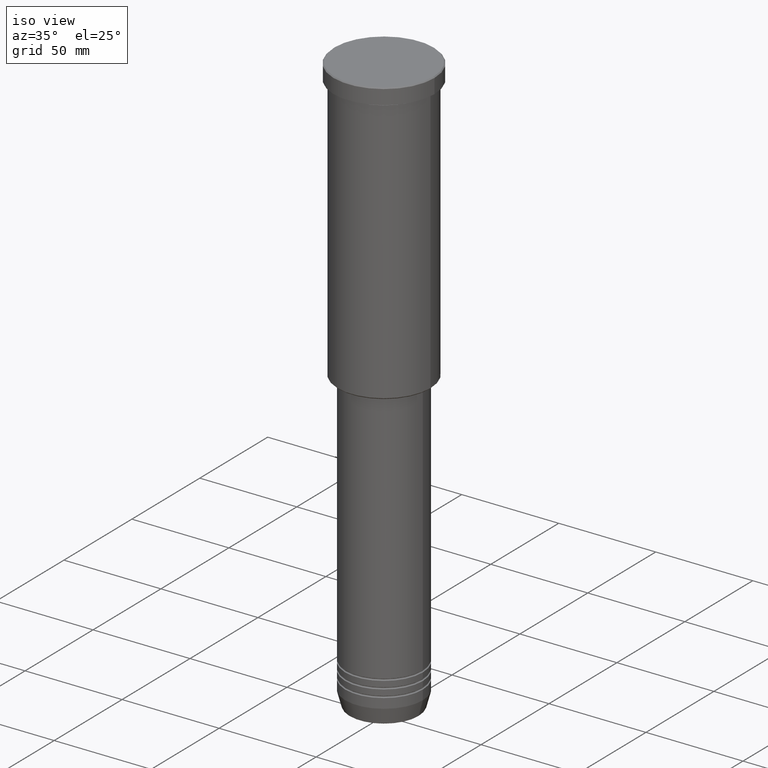
[diagram: clean part render]
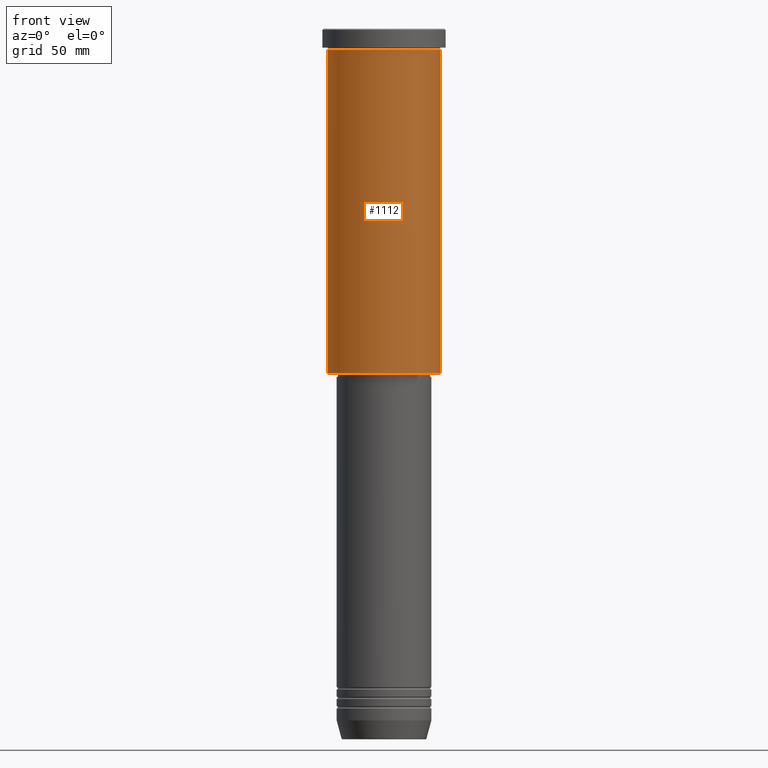
[diagram: tour spotlight — one face highlighted and labeled with its STEP entity id]
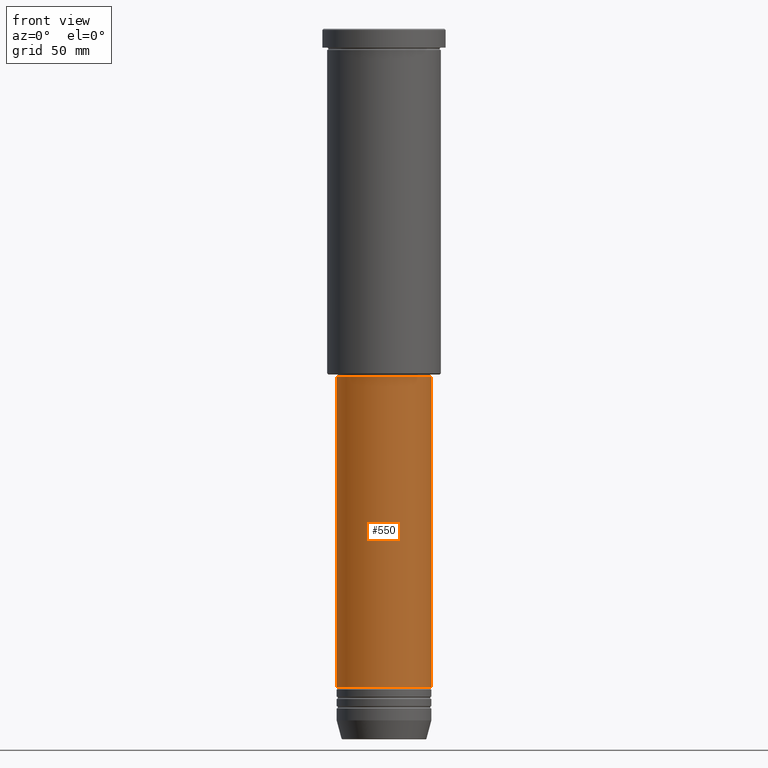
[diagram: tour spotlight — one face highlighted and labeled with its STEP entity id]
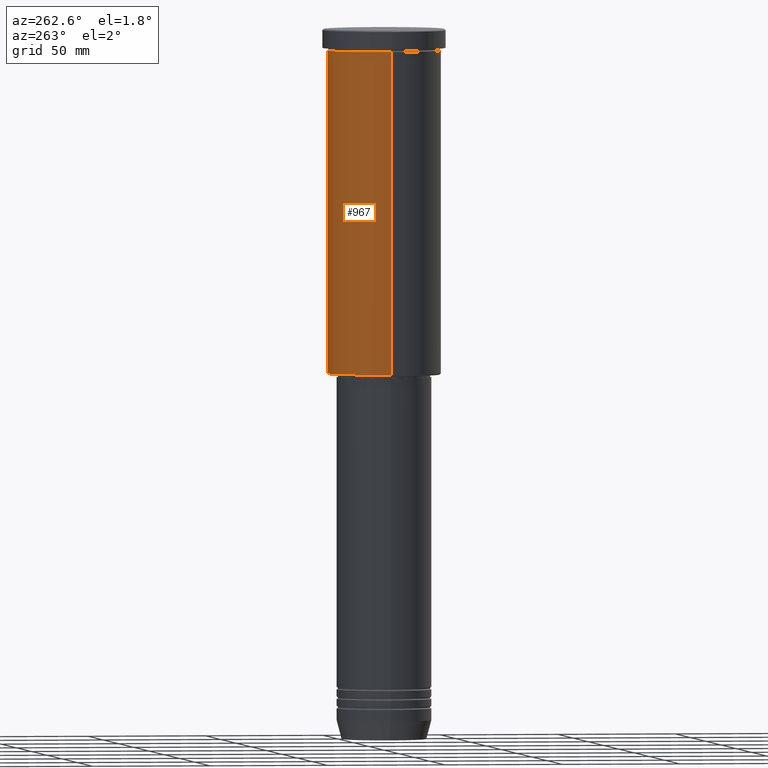
[diagram: tour spotlight — one face highlighted and labeled with its STEP entity id]
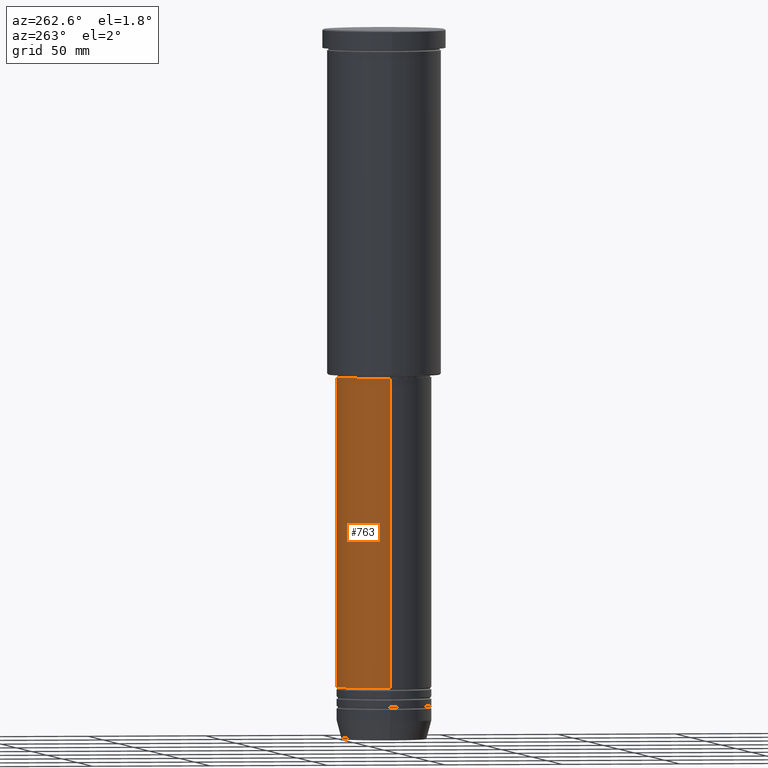
[diagram: tour spotlight — one face highlighted and labeled with its STEP entity id]
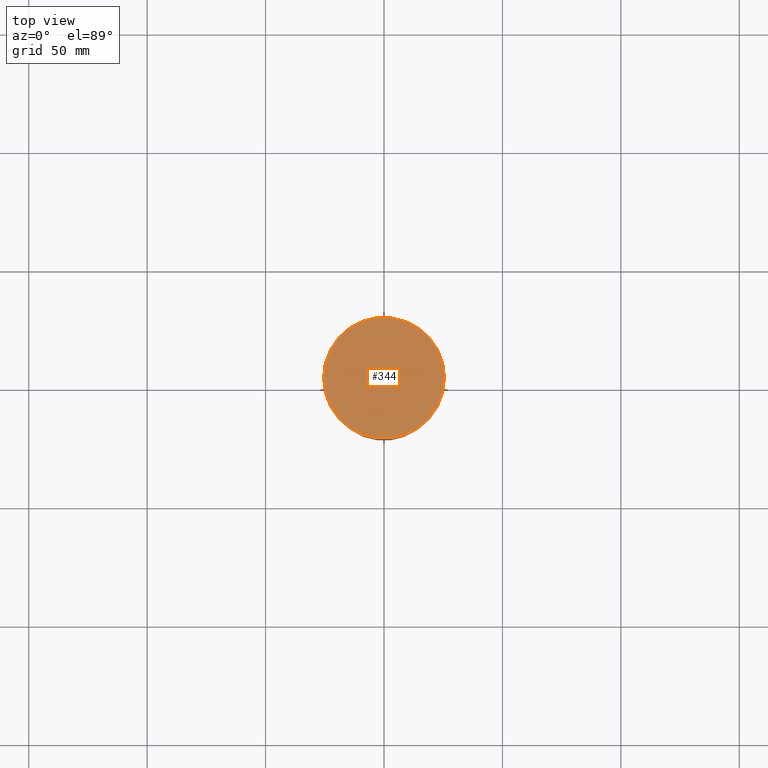
[diagram: tour spotlight — one face highlighted and labeled with its STEP entity id]
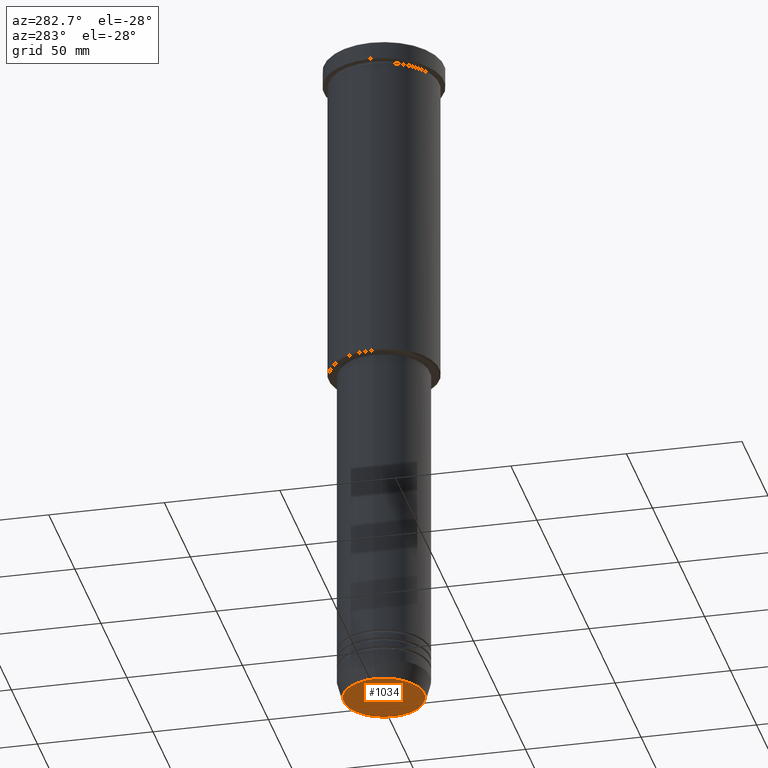
[diagram: tour spotlight — one face highlighted and labeled with its STEP entity id]
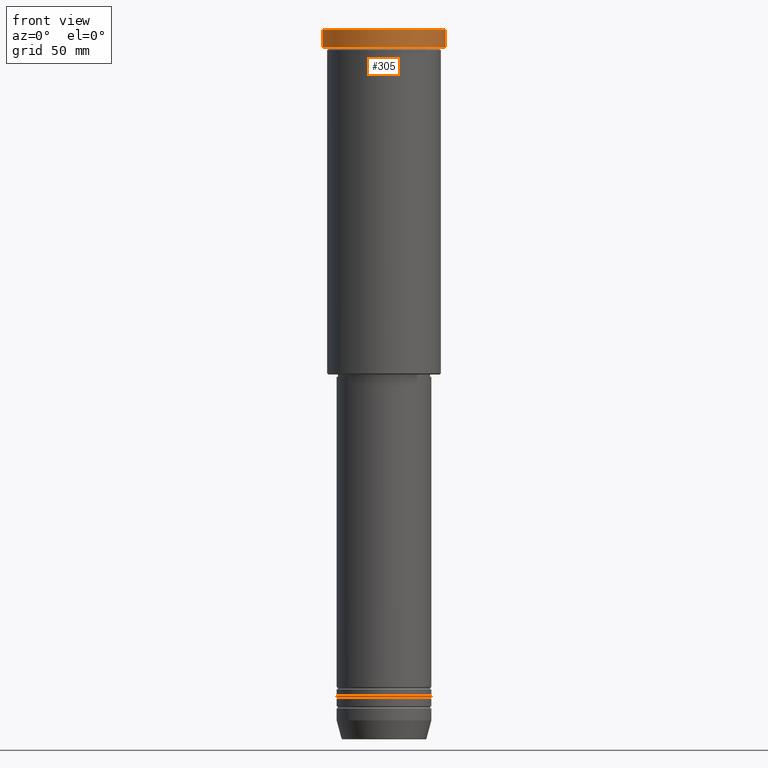
[diagram: tour spotlight — one face highlighted and labeled with its STEP entity id]
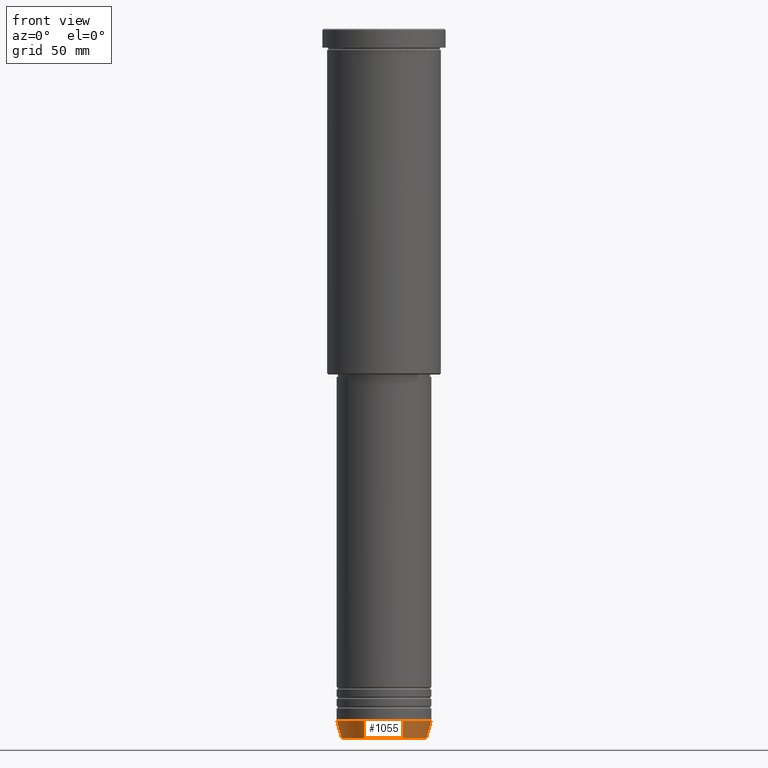
[diagram: tour spotlight — one face highlighted and labeled with its STEP entity id]
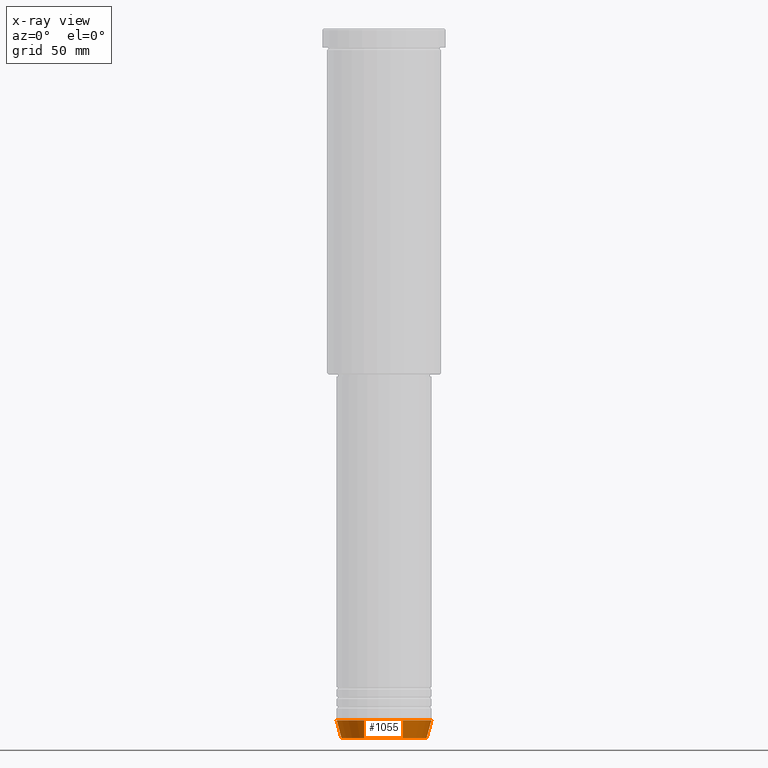
[diagram: x-ray of the same camera — body ghosted, this tour face saturated]
A machine part: a face-by-face anatomy tour. The part has 43 B-rep faces; the first image is the clean iso view, then the 8 largest visible faces are spotlighted one at a time (largest first), each with its STEP entity span.

Face 1 — front view, entity #1112. In plain terms, the highlighted cylindrical surface (partial cylindrical patch) has radius 24 mm, axis along (-0, -0, 1).
Definition (entity closure, byte-faithful):
#22 = EDGE_CURVE ( 'NONE', #1080, #438, #791, .T. ) ;
#26 = VERTEX_POINT ( 'NONE', #882 ) ;
#95 = DIRECTION ( 'NONE',  ( -0.000000000000000000, -0.000000000000000000, 1.000000000000000000 ) ) ;
#126 = CARTESIAN_POINT ( 'NONE',  ( -24.00000000000000000, 2.939152317953647894E-15, -8.999999999999994671 ) ) ;
#142 = VECTOR ( 'NONE', #398, 1000.000000000000000 ) ;
#159 = CIRCLE ( 'NONE', #329, 24.00000000000000000 ) ;
#207 = FACE_OUTER_BOUND ( 'NONE', #375, .T. ) ;
#217 = EDGE_CURVE ( 'NONE', #1080, #26, #392, .T. ) ;
#225 = VERTEX_POINT ( 'NONE', #369 ) ;
#295 = VECTOR ( 'NONE', #1142, 1000.000000000000000 ) ;
#311 = ORIENTED_EDGE ( 'NONE', *, *, #217, .T. ) ;
#329 = AXIS2_PLACEMENT_3D ( 'NONE', #1056, #1126, #408 ) ;
#369 = CARTESIAN_POINT ( 'NONE',  ( 24.00000000000000000, 0.000000000000000000, -8.999999999999994671 ) ) ;
#375 = EDGE_LOOP ( 'NONE', ( #1072, #311, #508, #401 ) ) ;
#392 = CIRCLE ( 'NONE', #784, 24.00000000000000000 ) ;
#397 = EDGE_CURVE ( 'NONE', #438, #225, #159, .T. ) ;
#398 = DIRECTION ( 'NONE',  ( -0.000000000000000000, -0.000000000000000000, 1.000000000000000000 ) ) ;
#401 = ORIENTED_EDGE ( 'NONE', *, *, #397, .F. ) ;
#408 = DIRECTION ( 'NONE',  ( 1.000000000000000000, 0.000000000000000000, 0.000000000000000000 ) ) ;
#438 = VERTEX_POINT ( 'NONE', #126 ) ;
#449 = EDGE_CURVE ( 'NONE', #26, #225, #491, .T. ) ;
#479 = AXIS2_PLACEMENT_3D ( 'NONE', #751, #926, #590 ) ;
#487 = CARTESIAN_POINT ( 'NONE',  ( -24.00000000000000000, 2.939152317953647894E-15, -145.4999999999998863 ) ) ;
#491 = LINE ( 'NONE', #593, #142 ) ;
#508 = ORIENTED_EDGE ( 'NONE', *, *, #449, .T. ) ;
#573 = CYLINDRICAL_SURFACE ( 'NONE', #479, 24.00000000000000000 ) ;
#590 = DIRECTION ( 'NONE',  ( 1.000000000000000000, 0.000000000000000000, 0.000000000000000000 ) ) ;
#593 = CARTESIAN_POINT ( 'NONE',  ( 24.00000000000000000, 0.000000000000000000, 0.000000000000000000 ) ) ;
#719 = CARTESIAN_POINT ( 'NONE',  ( -24.00000000000000000, 2.939152317953647894E-15, 0.000000000000000000 ) ) ;
#739 = DIRECTION ( 'NONE',  ( -1.000000000000000000, 0.000000000000000000, 0.000000000000000000 ) ) ;
#751 = CARTESIAN_POINT ( 'NONE',  ( 0.000000000000000000, 0.000000000000000000, 0.000000000000000000 ) ) ;
#784 = AXIS2_PLACEMENT_3D ( 'NONE', #1006, #95, #739 ) ;
#791 = LINE ( 'NONE', #719, #295 ) ;
#882 = CARTESIAN_POINT ( 'NONE',  ( 24.00000000000000000, 0.000000000000000000, -145.4999999999998863 ) ) ;
#926 = DIRECTION ( 'NONE',  ( -0.000000000000000000, -0.000000000000000000, 1.000000000000000000 ) ) ;
#1006 = CARTESIAN_POINT ( 'NONE',  ( 0.000000000000000000, 0.000000000000000000, -145.4999999999998863 ) ) ;
#1056 = CARTESIAN_POINT ( 'NONE',  ( 0.000000000000000000, 0.000000000000000000, -8.999999999999994671 ) ) ;
#1072 = ORIENTED_EDGE ( 'NONE', *, *, #22, .F. ) ;
#1080 = VERTEX_POINT ( 'NONE', #487 ) ;
#1112 = ADVANCED_FACE ( 'NONE', ( #207 ), #573, .T. ) ;
#1126 = DIRECTION ( 'NONE',  ( -0.000000000000000000, -0.000000000000000000, 1.000000000000000000 ) ) ;
#1142 = DIRECTION ( 'NONE',  ( -0.000000000000000000, -0.000000000000000000, 1.000000000000000000 ) ) ;

Face 2 — front view, entity #550. In plain terms, the highlighted cylindrical surface (partial cylindrical patch) has radius 20 mm, axis along (-0, -0, 1).
Definition (entity closure, byte-faithful):
#9 = CARTESIAN_POINT ( 'NONE',  ( 20.00000000000000355, 0.000000000000000000, -277.9999999999999432 ) ) ;
#53 = CARTESIAN_POINT ( 'NONE',  ( -20.00000000000000355, 2.449293598294706907E-15, -277.9999999999999432 ) ) ;
#65 = VECTOR ( 'NONE', #1094, 1000.000000000000000 ) ;
#72 = CARTESIAN_POINT ( 'NONE',  ( -20.00000000000000355, 2.449293598294706907E-15, -147.0000000000000000 ) ) ;
#78 = VERTEX_POINT ( 'NONE', #53 ) ;
#81 = DIRECTION ( 'NONE',  ( 1.000000000000000000, 0.000000000000000000, 0.000000000000000000 ) ) ;
#103 = EDGE_CURVE ( 'NONE', #78, #114, #981, .T. ) ;
#105 = CIRCLE ( 'NONE', #454, 20.00000000000000355 ) ;
#111 = EDGE_CURVE ( 'NONE', #114, #1068, #105, .T. ) ;
#114 = VERTEX_POINT ( 'NONE', #72 ) ;
#119 = EDGE_LOOP ( 'NONE', ( #455, #779, #630, #770 ) ) ;
#140 = DIRECTION ( 'NONE',  ( -0.000000000000000000, -0.000000000000000000, 1.000000000000000000 ) ) ;
#333 = VERTEX_POINT ( 'NONE', #9 ) ;
#337 = LINE ( 'NONE', #716, #65 ) ;
#350 = CYLINDRICAL_SURFACE ( 'NONE', #637, 20.00000000000000355 ) ;
#423 = DIRECTION ( 'NONE',  ( 1.000000000000000000, 0.000000000000000000, 0.000000000000000000 ) ) ;
#454 = AXIS2_PLACEMENT_3D ( 'NONE', #531, #1160, #423 ) ;
#455 = ORIENTED_EDGE ( 'NONE', *, *, #103, .F. ) ;
#531 = CARTESIAN_POINT ( 'NONE',  ( 0.000000000000000000, 0.000000000000000000, -147.0000000000000000 ) ) ;
#535 = DIRECTION ( 'NONE',  ( 1.000000000000000000, 0.000000000000000000, 0.000000000000000000 ) ) ;
#542 = DIRECTION ( 'NONE',  ( -0.000000000000000000, -0.000000000000000000, 1.000000000000000000 ) ) ;
#543 = EDGE_CURVE ( 'NONE', #78, #333, #690, .T. ) ;
#550 = ADVANCED_FACE ( 'NONE', ( #1146 ), #350, .T. ) ;
#630 = ORIENTED_EDGE ( 'NONE', *, *, #999, .T. ) ;
#637 = AXIS2_PLACEMENT_3D ( 'NONE', #1065, #542, #81 ) ;
#690 = CIRCLE ( 'NONE', #934, 20.00000000000000355 ) ;
#716 = CARTESIAN_POINT ( 'NONE',  ( 20.00000000000000355, 0.000000000000000000, 0.000000000000000000 ) ) ;
#770 = ORIENTED_EDGE ( 'NONE', *, *, #111, .F. ) ;
#779 = ORIENTED_EDGE ( 'NONE', *, *, #543, .T. ) ;
#877 = CARTESIAN_POINT ( 'NONE',  ( -20.00000000000000355, 2.449293598294706907E-15, 0.000000000000000000 ) ) ;
#910 = DIRECTION ( 'NONE',  ( -0.000000000000000000, -0.000000000000000000, 1.000000000000000000 ) ) ;
#934 = AXIS2_PLACEMENT_3D ( 'NONE', #977, #910, #535 ) ;
#977 = CARTESIAN_POINT ( 'NONE',  ( 0.000000000000000000, 0.000000000000000000, -277.9999999999999432 ) ) ;
#981 = LINE ( 'NONE', #877, #1168 ) ;
#999 = EDGE_CURVE ( 'NONE', #333, #1068, #337, .T. ) ;
#1035 = CARTESIAN_POINT ( 'NONE',  ( 20.00000000000000355, 0.000000000000000000, -147.0000000000000000 ) ) ;
#1065 = CARTESIAN_POINT ( 'NONE',  ( 0.000000000000000000, 0.000000000000000000, 0.000000000000000000 ) ) ;
#1068 = VERTEX_POINT ( 'NONE', #1035 ) ;
#1094 = DIRECTION ( 'NONE',  ( -0.000000000000000000, -0.000000000000000000, 1.000000000000000000 ) ) ;
#1146 = FACE_OUTER_BOUND ( 'NONE', #119, .T. ) ;
#1160 = DIRECTION ( 'NONE',  ( -0.000000000000000000, -0.000000000000000000, 1.000000000000000000 ) ) ;
#1168 = VECTOR ( 'NONE', #140, 1000.000000000000000 ) ;

Face 3 — auxiliary view, entity #967. In plain terms, the highlighted cylindrical surface (partial cylindrical patch) has radius 24 mm, axis along (-0, -0, 1).
Definition (entity closure, byte-faithful):
#22 = EDGE_CURVE ( 'NONE', #1080, #438, #791, .T. ) ;
#26 = VERTEX_POINT ( 'NONE', #882 ) ;
#70 = DIRECTION ( 'NONE',  ( -0.000000000000000000, -0.000000000000000000, 1.000000000000000000 ) ) ;
#126 = CARTESIAN_POINT ( 'NONE',  ( -24.00000000000000000, 2.939152317953647894E-15, -8.999999999999994671 ) ) ;
#131 = ORIENTED_EDGE ( 'NONE', *, *, #449, .F. ) ;
#142 = VECTOR ( 'NONE', #398, 1000.000000000000000 ) ;
#166 = AXIS2_PLACEMENT_3D ( 'NONE', #1019, #285, #193 ) ;
#168 = CYLINDRICAL_SURFACE ( 'NONE', #618, 24.00000000000000000 ) ;
#172 = FACE_OUTER_BOUND ( 'NONE', #530, .T. ) ;
#193 = DIRECTION ( 'NONE',  ( -1.000000000000000000, 0.000000000000000000, 0.000000000000000000 ) ) ;
#225 = VERTEX_POINT ( 'NONE', #369 ) ;
#285 = DIRECTION ( 'NONE',  ( -0.000000000000000000, -0.000000000000000000, 1.000000000000000000 ) ) ;
#289 = CARTESIAN_POINT ( 'NONE',  ( 0.000000000000000000, 0.000000000000000000, -8.999999999999994671 ) ) ;
#295 = VECTOR ( 'NONE', #1142, 1000.000000000000000 ) ;
#369 = CARTESIAN_POINT ( 'NONE',  ( 24.00000000000000000, 0.000000000000000000, -8.999999999999994671 ) ) ;
#398 = DIRECTION ( 'NONE',  ( -0.000000000000000000, -0.000000000000000000, 1.000000000000000000 ) ) ;
#438 = VERTEX_POINT ( 'NONE', #126 ) ;
#449 = EDGE_CURVE ( 'NONE', #26, #225, #491, .T. ) ;
#464 = DIRECTION ( 'NONE',  ( -0.000000000000000000, -0.000000000000000000, 1.000000000000000000 ) ) ;
#470 = ORIENTED_EDGE ( 'NONE', *, *, #22, .T. ) ;
#476 = AXIS2_PLACEMENT_3D ( 'NONE', #289, #464, #1091 ) ;
#487 = CARTESIAN_POINT ( 'NONE',  ( -24.00000000000000000, 2.939152317953647894E-15, -145.4999999999998863 ) ) ;
#491 = LINE ( 'NONE', #593, #142 ) ;
#530 = EDGE_LOOP ( 'NONE', ( #1000, #470, #732, #131 ) ) ;
#593 = CARTESIAN_POINT ( 'NONE',  ( 24.00000000000000000, 0.000000000000000000, 0.000000000000000000 ) ) ;
#618 = AXIS2_PLACEMENT_3D ( 'NONE', #1178, #70, #809 ) ;
#719 = CARTESIAN_POINT ( 'NONE',  ( -24.00000000000000000, 2.939152317953647894E-15, 0.000000000000000000 ) ) ;
#725 = EDGE_CURVE ( 'NONE', #225, #438, #990, .T. ) ;
#732 = ORIENTED_EDGE ( 'NONE', *, *, #725, .F. ) ;
#791 = LINE ( 'NONE', #719, #295 ) ;
#809 = DIRECTION ( 'NONE',  ( 1.000000000000000000, 0.000000000000000000, 0.000000000000000000 ) ) ;
#814 = EDGE_CURVE ( 'NONE', #26, #1080, #972, .T. ) ;
#882 = CARTESIAN_POINT ( 'NONE',  ( 24.00000000000000000, 0.000000000000000000, -145.4999999999998863 ) ) ;
#967 = ADVANCED_FACE ( 'NONE', ( #172 ), #168, .T. ) ;
#972 = CIRCLE ( 'NONE', #166, 24.00000000000000000 ) ;
#990 = CIRCLE ( 'NONE', #476, 24.00000000000000000 ) ;
#1000 = ORIENTED_EDGE ( 'NONE', *, *, #814, .T. ) ;
#1019 = CARTESIAN_POINT ( 'NONE',  ( 0.000000000000000000, 0.000000000000000000, -145.4999999999998863 ) ) ;
#1080 = VERTEX_POINT ( 'NONE', #487 ) ;
#1091 = DIRECTION ( 'NONE',  ( 1.000000000000000000, 0.000000000000000000, 0.000000000000000000 ) ) ;
#1142 = DIRECTION ( 'NONE',  ( -0.000000000000000000, -0.000000000000000000, 1.000000000000000000 ) ) ;
#1178 = CARTESIAN_POINT ( 'NONE',  ( 0.000000000000000000, 0.000000000000000000, 0.000000000000000000 ) ) ;

Face 4 — auxiliary view, entity #763. In plain terms, the highlighted cylindrical surface (partial cylindrical patch) has radius 20 mm, axis along (-0, -0, 1).
Definition (entity closure, byte-faithful):
#9 = CARTESIAN_POINT ( 'NONE',  ( 20.00000000000000355, 0.000000000000000000, -277.9999999999999432 ) ) ;
#13 = CIRCLE ( 'NONE', #500, 20.00000000000000355 ) ;
#48 = AXIS2_PLACEMENT_3D ( 'NONE', #1125, #307, #686 ) ;
#53 = CARTESIAN_POINT ( 'NONE',  ( -20.00000000000000355, 2.449293598294706907E-15, -277.9999999999999432 ) ) ;
#65 = VECTOR ( 'NONE', #1094, 1000.000000000000000 ) ;
#72 = CARTESIAN_POINT ( 'NONE',  ( -20.00000000000000355, 2.449293598294706907E-15, -147.0000000000000000 ) ) ;
#78 = VERTEX_POINT ( 'NONE', #53 ) ;
#103 = EDGE_CURVE ( 'NONE', #78, #114, #981, .T. ) ;
#114 = VERTEX_POINT ( 'NONE', #72 ) ;
#140 = DIRECTION ( 'NONE',  ( -0.000000000000000000, -0.000000000000000000, 1.000000000000000000 ) ) ;
#270 = FACE_OUTER_BOUND ( 'NONE', #1132, .T. ) ;
#298 = AXIS2_PLACEMENT_3D ( 'NONE', #1007, #576, #485 ) ;
#302 = ORIENTED_EDGE ( 'NONE', *, *, #103, .T. ) ;
#307 = DIRECTION ( 'NONE',  ( -0.000000000000000000, -0.000000000000000000, 1.000000000000000000 ) ) ;
#333 = VERTEX_POINT ( 'NONE', #9 ) ;
#337 = LINE ( 'NONE', #716, #65 ) ;
#396 = CIRCLE ( 'NONE', #48, 20.00000000000000355 ) ;
#399 = ORIENTED_EDGE ( 'NONE', *, *, #992, .T. ) ;
#434 = CARTESIAN_POINT ( 'NONE',  ( 0.000000000000000000, 0.000000000000000000, -277.9999999999999432 ) ) ;
#485 = DIRECTION ( 'NONE',  ( 1.000000000000000000, 0.000000000000000000, 0.000000000000000000 ) ) ;
#500 = AXIS2_PLACEMENT_3D ( 'NONE', #434, #885, #545 ) ;
#545 = DIRECTION ( 'NONE',  ( 1.000000000000000000, 0.000000000000000000, 0.000000000000000000 ) ) ;
#576 = DIRECTION ( 'NONE',  ( -0.000000000000000000, -0.000000000000000000, 1.000000000000000000 ) ) ;
#648 = CYLINDRICAL_SURFACE ( 'NONE', #298, 20.00000000000000355 ) ;
#686 = DIRECTION ( 'NONE',  ( 1.000000000000000000, 0.000000000000000000, 0.000000000000000000 ) ) ;
#716 = CARTESIAN_POINT ( 'NONE',  ( 20.00000000000000355, 0.000000000000000000, 0.000000000000000000 ) ) ;
#763 = ADVANCED_FACE ( 'NONE', ( #270 ), #648, .T. ) ;
#868 = EDGE_CURVE ( 'NONE', #1068, #114, #396, .T. ) ;
#877 = CARTESIAN_POINT ( 'NONE',  ( -20.00000000000000355, 2.449293598294706907E-15, 0.000000000000000000 ) ) ;
#885 = DIRECTION ( 'NONE',  ( -0.000000000000000000, -0.000000000000000000, 1.000000000000000000 ) ) ;
#948 = ORIENTED_EDGE ( 'NONE', *, *, #999, .F. ) ;
#981 = LINE ( 'NONE', #877, #1168 ) ;
#992 = EDGE_CURVE ( 'NONE', #333, #78, #13, .T. ) ;
#999 = EDGE_CURVE ( 'NONE', #333, #1068, #337, .T. ) ;
#1007 = CARTESIAN_POINT ( 'NONE',  ( 0.000000000000000000, 0.000000000000000000, 0.000000000000000000 ) ) ;
#1015 = ORIENTED_EDGE ( 'NONE', *, *, #868, .F. ) ;
#1035 = CARTESIAN_POINT ( 'NONE',  ( 20.00000000000000355, 0.000000000000000000, -147.0000000000000000 ) ) ;
#1068 = VERTEX_POINT ( 'NONE', #1035 ) ;
#1094 = DIRECTION ( 'NONE',  ( -0.000000000000000000, -0.000000000000000000, 1.000000000000000000 ) ) ;
#1125 = CARTESIAN_POINT ( 'NONE',  ( 0.000000000000000000, 0.000000000000000000, -147.0000000000000000 ) ) ;
#1132 = EDGE_LOOP ( 'NONE', ( #399, #302, #1015, #948 ) ) ;
#1168 = VECTOR ( 'NONE', #140, 1000.000000000000000 ) ;

Face 5 — top view, entity #344. In plain terms, the highlighted planar face has unit normal (0, -0, 1).
Definition (entity closure, byte-faithful):
#31 = CIRCLE ( 'NONE', #581, 25.50000000000005329 ) ;
#89 = CIRCLE ( 'NONE', #768, 25.50000000000005329 ) ;
#209 = CARTESIAN_POINT ( 'NONE',  ( 25.50000000000005329, 3.153465507804437559E-15, 0.000000000000000000 ) ) ;
#221 = AXIS2_PLACEMENT_3D ( 'NONE', #1038, #1043, #1134 ) ;
#276 = DIRECTION ( 'NONE',  ( 1.000000000000000000, 0.000000000000000000, 0.000000000000000000 ) ) ;
#322 = DIRECTION ( 'NONE',  ( -0.000000000000000000, -0.000000000000000000, 1.000000000000000000 ) ) ;
#344 = ADVANCED_FACE ( 'NONE', ( #931 ), #846, .T. ) ;
#510 = EDGE_CURVE ( 'NONE', #825, #607, #89, .T. ) ;
#524 = EDGE_LOOP ( 'NONE', ( #569, #914 ) ) ;
#556 = CARTESIAN_POINT ( 'NONE',  ( 0.000000000000000000, 0.000000000000000000, 0.000000000000000000 ) ) ;
#569 = ORIENTED_EDGE ( 'NONE', *, *, #671, .T. ) ;
#581 = AXIS2_PLACEMENT_3D ( 'NONE', #556, #667, #276 ) ;
#607 = VERTEX_POINT ( 'NONE', #709 ) ;
#667 = DIRECTION ( 'NONE',  ( -0.000000000000000000, -0.000000000000000000, 1.000000000000000000 ) ) ;
#671 = EDGE_CURVE ( 'NONE', #607, #825, #31, .T. ) ;
#709 = CARTESIAN_POINT ( 'NONE',  ( -25.50000000000005329, 0.000000000000000000, 0.000000000000000000 ) ) ;
#768 = AXIS2_PLACEMENT_3D ( 'NONE', #1143, #322, #945 ) ;
#825 = VERTEX_POINT ( 'NONE', #209 ) ;
#846 = PLANE ( 'NONE',  #221 ) ;
#914 = ORIENTED_EDGE ( 'NONE', *, *, #510, .T. ) ;
#931 = FACE_OUTER_BOUND ( 'NONE', #524, .T. ) ;
#945 = DIRECTION ( 'NONE',  ( 1.000000000000000000, 0.000000000000000000, 0.000000000000000000 ) ) ;
#1038 = CARTESIAN_POINT ( 'NONE',  ( 0.000000000000000000, 0.000000000000000000, 0.000000000000000000 ) ) ;
#1043 = DIRECTION ( 'NONE',  ( 0.000000000000000000, -0.000000000000000000, 1.000000000000000000 ) ) ;
#1134 = DIRECTION ( 'NONE',  ( 1.000000000000000000, 0.000000000000000000, 0.000000000000000000 ) ) ;
#1143 = CARTESIAN_POINT ( 'NONE',  ( 0.000000000000000000, 0.000000000000000000, 0.000000000000000000 ) ) ;

Face 6 — auxiliary view, entity #1034. In plain terms, the highlighted planar face has unit normal (0, -0, 1).
Definition (entity closure, byte-faithful):
#30 = CARTESIAN_POINT ( 'NONE',  ( 0.000000000000000000, 0.000000000000000000, -300.0000000000000000 ) ) ;
#100 = VERTEX_POINT ( 'NONE', #697 ) ;
#121 = DIRECTION ( 'NONE',  ( 1.000000000000000000, 0.000000000000000000, 0.000000000000000000 ) ) ;
#164 = EDGE_LOOP ( 'NONE', ( #757, #181 ) ) ;
#181 = ORIENTED_EDGE ( 'NONE', *, *, #1066, .T. ) ;
#224 = CIRCLE ( 'NONE', #897, 17.47274296656153680 ) ;
#308 = CARTESIAN_POINT ( 'NONE',  ( 17.47274296656153680, 0.000000000000000000, -300.0000000000000000 ) ) ;
#362 = DIRECTION ( 'NONE',  ( 1.000000000000000000, 0.000000000000000000, 0.000000000000000000 ) ) ;
#367 = DIRECTION ( 'NONE',  ( 0.000000000000000000, 0.000000000000000000, -1.000000000000000000 ) ) ;
#418 = EDGE_CURVE ( 'NONE', #496, #100, #933, .T. ) ;
#496 = VERTEX_POINT ( 'NONE', #308 ) ;
#643 = CARTESIAN_POINT ( 'NONE',  ( 0.000000000000000000, 0.000000000000000000, -300.0000000000000000 ) ) ;
#697 = CARTESIAN_POINT ( 'NONE',  ( -17.47274296656153680, 2.169366823916868503E-15, -300.0000000000000000 ) ) ;
#757 = ORIENTED_EDGE ( 'NONE', *, *, #418, .T. ) ;
#857 = DIRECTION ( 'NONE',  ( 0.000000000000000000, 0.000000000000000000, -1.000000000000000000 ) ) ;
#897 = AXIS2_PLACEMENT_3D ( 'NONE', #1098, #367, #1024 ) ;
#933 = CIRCLE ( 'NONE', #1079, 17.47274296656153680 ) ;
#1001 = DIRECTION ( 'NONE',  ( 0.000000000000000000, -0.000000000000000000, 1.000000000000000000 ) ) ;
#1024 = DIRECTION ( 'NONE',  ( 1.000000000000000000, 0.000000000000000000, 0.000000000000000000 ) ) ;
#1034 = ADVANCED_FACE ( 'NONE', ( #1086 ), #1078, .F. ) ;
#1066 = EDGE_CURVE ( 'NONE', #100, #496, #224, .T. ) ;
#1078 = PLANE ( 'NONE',  #1152 ) ;
#1079 = AXIS2_PLACEMENT_3D ( 'NONE', #30, #857, #121 ) ;
#1086 = FACE_OUTER_BOUND ( 'NONE', #164, .T. ) ;
#1098 = CARTESIAN_POINT ( 'NONE',  ( 0.000000000000000000, 0.000000000000000000, -300.0000000000000000 ) ) ;
#1152 = AXIS2_PLACEMENT_3D ( 'NONE', #643, #1001, #362 ) ;

Face 7 — front view, entity #305. In plain terms, the highlighted cylindrical surface (partial cylindrical patch) has radius 26 mm, axis along (-0, -0, 1).
Definition (entity closure, byte-faithful):
#28 = CARTESIAN_POINT ( 'NONE',  ( -26.00000000000000000, 3.184081677783118191E-15, -7.999999999999992895 ) ) ;
#43 = CIRCLE ( 'NONE', #456, 26.00000000000000000 ) ;
#73 = VERTEX_POINT ( 'NONE', #1075 ) ;
#125 = VECTOR ( 'NONE', #724, 1000.000000000000000 ) ;
#132 = EDGE_CURVE ( 'NONE', #852, #73, #43, .T. ) ;
#145 = EDGE_CURVE ( 'NONE', #73, #762, #810, .T. ) ;
#238 = AXIS2_PLACEMENT_3D ( 'NONE', #789, #959, #703 ) ;
#249 = VERTEX_POINT ( 'NONE', #480 ) ;
#284 = CYLINDRICAL_SURFACE ( 'NONE', #952, 26.00000000000000000 ) ;
#288 = DIRECTION ( 'NONE',  ( -0.000000000000000000, -0.000000000000000000, 1.000000000000000000 ) ) ;
#305 = ADVANCED_FACE ( 'NONE', ( #997 ), #284, .T. ) ;
#356 = CARTESIAN_POINT ( 'NONE',  ( 0.000000000000000000, 0.000000000000000000, -7.999999999999992895 ) ) ;
#456 = AXIS2_PLACEMENT_3D ( 'NONE', #356, #902, #1081 ) ;
#465 = LINE ( 'NONE', #832, #674 ) ;
#480 = CARTESIAN_POINT ( 'NONE',  ( -26.00000000000000000, 3.184081677783118191E-15, -0.4999999999999692468 ) ) ;
#482 = EDGE_CURVE ( 'NONE', #762, #249, #955, .T. ) ;
#629 = ORIENTED_EDGE ( 'NONE', *, *, #145, .T. ) ;
#651 = EDGE_LOOP ( 'NONE', ( #907, #892, #629, #680 ) ) ;
#674 = VECTOR ( 'NONE', #843, 1000.000000000000000 ) ;
#680 = ORIENTED_EDGE ( 'NONE', *, *, #482, .T. ) ;
#703 = DIRECTION ( 'NONE',  ( 1.000000000000000000, 0.000000000000000000, 0.000000000000000000 ) ) ;
#724 = DIRECTION ( 'NONE',  ( -0.000000000000000000, -0.000000000000000000, 1.000000000000000000 ) ) ;
#734 = CARTESIAN_POINT ( 'NONE',  ( 0.000000000000000000, 0.000000000000000000, 0.000000000000000000 ) ) ;
#735 = CARTESIAN_POINT ( 'NONE',  ( 26.00000000000000000, 0.000000000000000000, -0.4999999999999692468 ) ) ;
#762 = VERTEX_POINT ( 'NONE', #735 ) ;
#789 = CARTESIAN_POINT ( 'NONE',  ( 0.000000000000000000, 0.000000000000000000, -0.4999999999999692468 ) ) ;
#810 = LINE ( 'NONE', #1165, #125 ) ;
#832 = CARTESIAN_POINT ( 'NONE',  ( -26.00000000000000000, 3.184081677783118191E-15, 0.000000000000000000 ) ) ;
#843 = DIRECTION ( 'NONE',  ( -0.000000000000000000, -0.000000000000000000, 1.000000000000000000 ) ) ;
#852 = VERTEX_POINT ( 'NONE', #28 ) ;
#892 = ORIENTED_EDGE ( 'NONE', *, *, #132, .T. ) ;
#902 = DIRECTION ( 'NONE',  ( -0.000000000000000000, -0.000000000000000000, 1.000000000000000000 ) ) ;
#907 = ORIENTED_EDGE ( 'NONE', *, *, #1147, .F. ) ;
#952 = AXIS2_PLACEMENT_3D ( 'NONE', #734, #288, #1018 ) ;
#955 = CIRCLE ( 'NONE', #238, 26.00000000000000000 ) ;
#959 = DIRECTION ( 'NONE',  ( 0.000000000000000000, 0.000000000000000000, -1.000000000000000000 ) ) ;
#997 = FACE_OUTER_BOUND ( 'NONE', #651, .T. ) ;
#1018 = DIRECTION ( 'NONE',  ( 1.000000000000000000, 0.000000000000000000, 0.000000000000000000 ) ) ;
#1075 = CARTESIAN_POINT ( 'NONE',  ( 26.00000000000000000, 0.000000000000000000, -7.999999999999992895 ) ) ;
#1081 = DIRECTION ( 'NONE',  ( 1.000000000000000000, 0.000000000000000000, 0.000000000000000000 ) ) ;
#1147 = EDGE_CURVE ( 'NONE', #852, #249, #465, .T. ) ;
#1165 = CARTESIAN_POINT ( 'NONE',  ( 26.00000000000000000, 0.000000000000000000, 0.000000000000000000 ) ) ;

Face 8 — front view, entity #1055. An x-ray twin of the same camera follows (body ghosted, this face saturated) — the face is partly hidden behind the body. In plain terms, the highlighted conical surface has half-angle 15 deg.
Definition (entity closure, byte-faithful):
#14 = EDGE_CURVE ( 'NONE', #37, #574, #1054, .T. ) ;
#37 = VERTEX_POINT ( 'NONE', #241 ) ;
#50 = CARTESIAN_POINT ( 'NONE',  ( 20.00000000000000355, 0.000000000000000000, -292.0000000000000000 ) ) ;
#61 = DIRECTION ( 'NONE',  ( -0.2588190451025212391, 3.169619151431771721E-17, 0.9659258262890680902 ) ) ;
#94 = DIRECTION ( 'NONE',  ( 1.000000000000000000, 0.000000000000000000, 0.000000000000000000 ) ) ;
#99 = DIRECTION ( 'NONE',  ( 1.000000000000000000, 0.000000000000000000, 0.000000000000000000 ) ) ;
#139 = ORIENTED_EDGE ( 'NONE', *, *, #14, .T. ) ;
#189 = CARTESIAN_POINT ( 'NONE',  ( 0.000000000000000000, 0.000000000000000000, -292.0000000000000000 ) ) ;
#198 = CARTESIAN_POINT ( 'NONE',  ( -17.95570587970608045, 2.324116685748021371E-15, -299.6294095225512137 ) ) ;
#241 = CARTESIAN_POINT ( 'NONE',  ( 17.95570587970608045, 0.000000000000000000, -299.6294095225512137 ) ) ;
#277 = EDGE_CURVE ( 'NONE', #1097, #37, #474, .T. ) ;
#342 = ORIENTED_EDGE ( 'NONE', *, *, #1156, .F. ) ;
#383 = ORIENTED_EDGE ( 'NONE', *, *, #277, .T. ) ;
#393 = ORIENTED_EDGE ( 'NONE', *, *, #964, .F. ) ;
#474 = CIRCLE ( 'NONE', #800, 17.95570587970608045 ) ;
#494 = VECTOR ( 'NONE', #975, 1000.000000000000114 ) ;
#554 = EDGE_LOOP ( 'NONE', ( #393, #383, #139, #342 ) ) ;
#568 = DIRECTION ( 'NONE',  ( -0.000000000000000000, -0.000000000000000000, 1.000000000000000000 ) ) ;
#574 = VERTEX_POINT ( 'NONE', #903 ) ;
#580 = FACE_OUTER_BOUND ( 'NONE', #554, .T. ) ;
#627 = CARTESIAN_POINT ( 'NONE',  ( -20.00000000000000355, 2.449293598294706907E-15, -292.0000000000000000 ) ) ;
#672 = DIRECTION ( 'NONE',  ( -0.000000000000000000, -0.000000000000000000, 1.000000000000000000 ) ) ;
#752 = AXIS2_PLACEMENT_3D ( 'NONE', #756, #672, #94 ) ;
#756 = CARTESIAN_POINT ( 'NONE',  ( 0.000000000000000000, 0.000000000000000000, -292.0000000000000000 ) ) ;
#800 = AXIS2_PLACEMENT_3D ( 'NONE', #1022, #1095, #924 ) ;
#824 = CARTESIAN_POINT ( 'NONE',  ( -20.00000000000000355, 2.449293598294706907E-15, -292.0000000000000000 ) ) ;
#845 = CIRCLE ( 'NONE', #973, 20.00000000000000355 ) ;
#861 = VECTOR ( 'NONE', #61, 1000.000000000000114 ) ;
#903 = CARTESIAN_POINT ( 'NONE',  ( 20.00000000000000355, 0.000000000000000000, -292.0000000000000000 ) ) ;
#922 = VERTEX_POINT ( 'NONE', #824 ) ;
#924 = DIRECTION ( 'NONE',  ( 1.000000000000000000, 0.000000000000000000, 0.000000000000000000 ) ) ;
#964 = EDGE_CURVE ( 'NONE', #1097, #922, #1157, .T. ) ;
#973 = AXIS2_PLACEMENT_3D ( 'NONE', #189, #568, #99 ) ;
#975 = DIRECTION ( 'NONE',  ( 0.2588190451025212391, 0.000000000000000000, 0.9659258262890680902 ) ) ;
#1022 = CARTESIAN_POINT ( 'NONE',  ( 0.000000000000000000, 0.000000000000000000, -299.6294095225512137 ) ) ;
#1054 = LINE ( 'NONE', #50, #494 ) ;
#1055 = ADVANCED_FACE ( 'NONE', ( #580 ), #1105, .T. ) ;
#1095 = DIRECTION ( 'NONE',  ( -0.000000000000000000, -0.000000000000000000, 1.000000000000000000 ) ) ;
#1097 = VERTEX_POINT ( 'NONE', #198 ) ;
#1105 = CONICAL_SURFACE ( 'NONE', #752, 20.00000000000000355, 0.2617993877991499629 ) ;
#1156 = EDGE_CURVE ( 'NONE', #922, #574, #845, .T. ) ;
#1157 = LINE ( 'NONE', #627, #861 ) ;